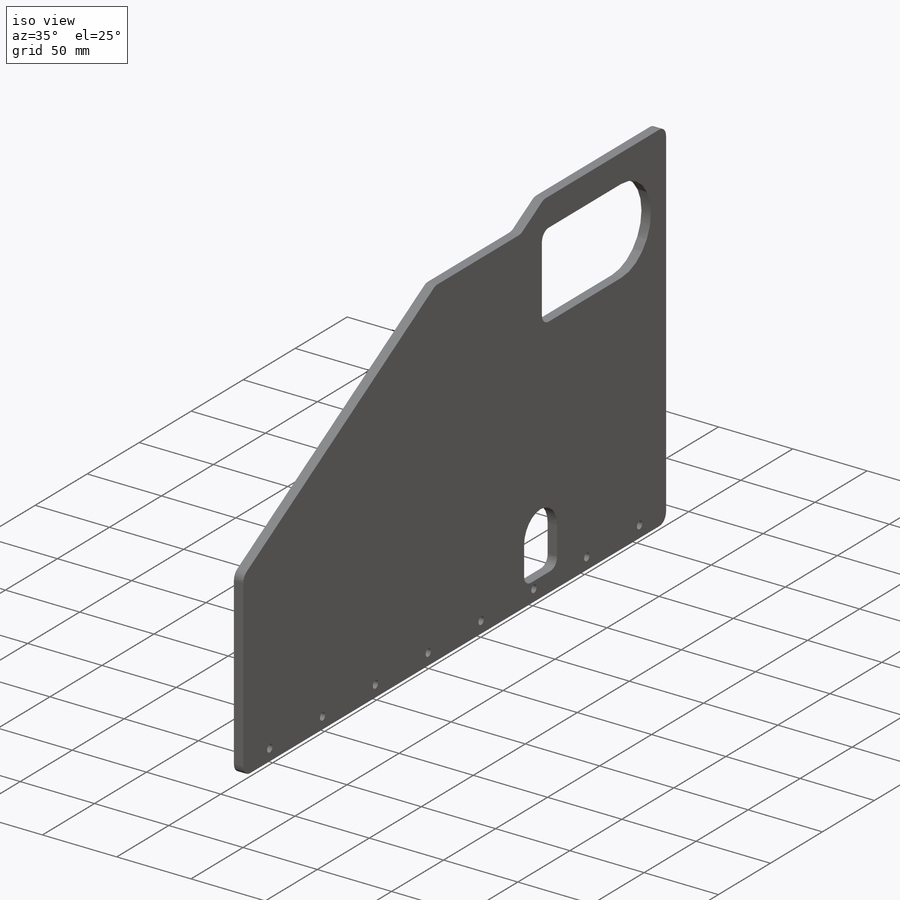
[diagram: iso view]
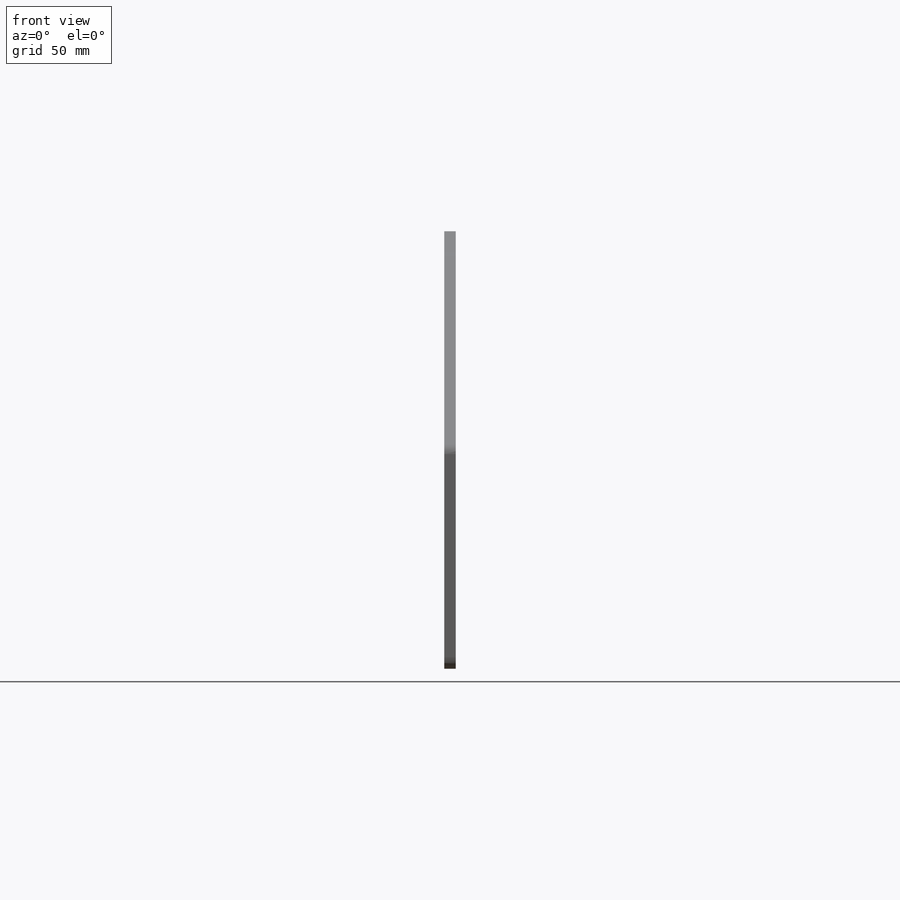
[diagram: front view]
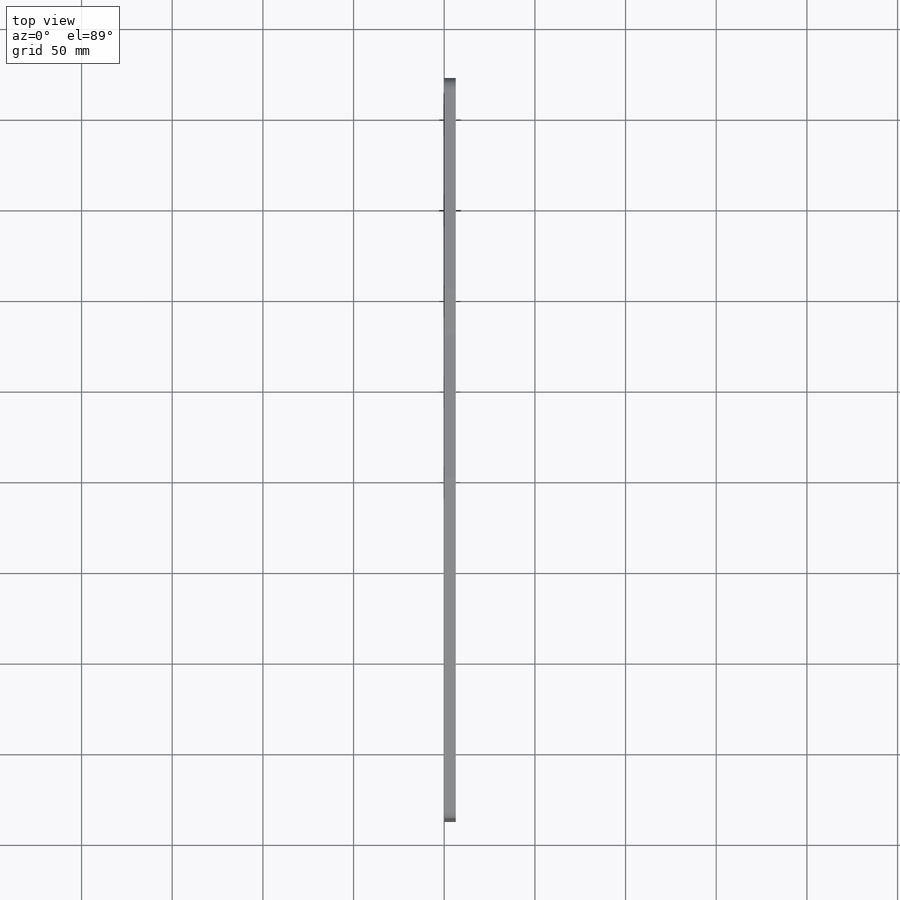
[diagram: top view]
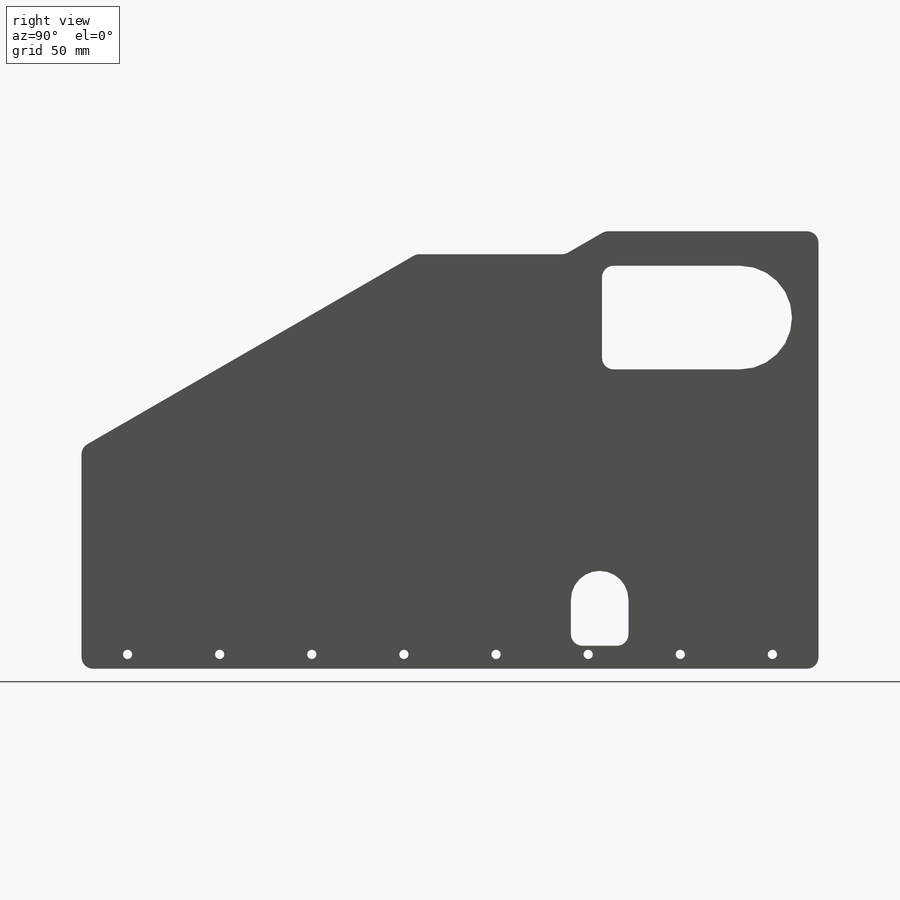
[diagram: right view]
SOLIDWORKS PART (.sldprt)
format: sldprt  version: not decoded by parser v0  size: 1,354,240 bytes
history: native  units: mm
features: sketch x28, cut_extrude x23, pattern_linear x7, extrude x3, fillet x2, material x1, delete_body x1 (+13 scaffold rows collapsed)
feature tree (78):
  scaffold x13  (default folders/planes/origin — collapsed)
  material  "Acrylic (Medium-high impact)"
  sketch  "Sketch2"  dims[c1.D1=431.8mm c1.D2=419.1mm c1.D3=127.0mm c1.D4=114.3mm c1.D5=38.1mm c1.D6=215.9mm c1.D7=~247.599108mm c2.D7=150.0deg]
  extrude  "Boss-Extrude1"  Depth=6.35mm
  sketch  "Sketch3"  dims[D4=7.9375mm D5=7.9375mm D1=38.1mm D2=63.5mm D3=63.5mm]
  cut_extrude  "Cut-Extrude1"  [1 undecoded]
  sketch  "Sketch4"  dims[c1.D1=6.35mm c1.D8=381.0mm c1.D2=38.1mm c1.D3=19.05mm c1.D4=381.0mm c1.D5=133.35mm c1.D6=268.2875mm c1.D7=101.6mm c2.D6=1.0deg c2.D5=10.0]
  sketch  "Sketch5"  dims[D1=6.35mm D2=12.7mm D3=12.7mm]
  cut_extrude  "Cut-Extrude3"  [1 undecoded]
  pattern_linear  "LPattern1"  Count1=16 Count2=1 Spacing1=25.4mm Spacing2=2.54mm
  sketch  "Sketch6"  dims[D1=12.7mm]
  cut_extrude  "Cut-Extrude4"  [1 undecoded]
  pattern_linear  "LPattern2"  Count1=11 Count2=1 Spacing1=25.4mm Spacing2=2.54mm
  sketch  "Sketch7"  dims[D1=12.7mm D2=12.7mm D3=12.7mm D4=12.7mm D5=12.7mm D6=12.7mm]
  cut_extrude  "Cut-Extrude5"  [1 undecoded]
  sketch  "Sketch8"  dims[c1.D1=3.81mm c1.D2=241.3mm c2.D1=215.9mm c2.D3=6.35mm]
  cut_extrude  "Cut-Extrude6"  [1 undecoded]
  pattern_linear  "LPattern3"  Count1=10 Count2=1 Spacing1=25.4mm Spacing2=2.54mm
  sketch  "Sketch9"  dims[D1=12.7mm]
  cut_extrude  "Cut-Extrude7"  [1 undecoded]
  pattern_linear  "LPattern4"  Count1=8 Count2=1 Spacing1=25.4mm Spacing2=2.54mm
  sketch  "Sketch10"  dims[D4=6.35mm D1=273.05mm D2=19.05mm D3=247.65mm D5=19.05mm D6=19.05mm D7=19.05mm]
  cut_extrude  "Cut-Extrude8"  [1 undecoded]
  sketch  "Sketch11"  dims[c1.D3=7.9375mm c1.D1=260.35mm c1.D2=38.1mm c1.D4=25.4mm c1.D5=25.4mm c2.D4=25.4mm c2.D5=25.4mm]
  cut_extrude  "Cut-Extrude9"  [1 undecoded]
  sketch  "Sketch12"  dims[D2=0.254mm D1=7.0]
  cut_extrude  "Cut-Extrude13"  [1 undecoded]
  sketch  "Sketch13"  dims[c1.D2=40.0mm c1.D1=131.25mm c1.D3=36.0mm c2.D1=9.8mm]
  sketch  "Sketch14"
  cut_extrude  "Cut-Extrude15"  [1 undecoded]
  sketch  "Sketch15"  dims[c1.D2=38.1mm c1.D1=48.0mm c2.D2=12.7mm]
  cut_extrude  "Cut-Extrude16"  [1 undecoded]
  sketch  "Sketch17"  dims[D1=12.7mm D2=6.35mm D3=12.7mm]
  cut_extrude  "Cut-Extrude17"  [1 undecoded]
  pattern_linear  "LPattern5"  Count1=17 Count2=1 Spacing1=25.4mm Spacing2=2.54mm
  pattern_linear  "LPattern6"  Count1=2 Count2=1 Spacing1=120.65mm Spacing2=2.54mm
  sketch  "Sketch18"  dims[D1=12.7mm D2=6.35mm]
  cut_extrude  "Cut-Extrude18"  [1 undecoded]
  pattern_linear  "LPattern7"  Count1=5 Count2=1 Spacing1=25.4mm Spacing2=2.54mm
  sketch  "Sketch19"  dims[D1=25.4mm D2=25.4mm D3=25.4mm D4=25.4mm D5=25.4mm]
  cut_extrude  "Cut-Extrude19"  [1 undecoded]
  sketch  "Sketch20"  dims[D1=12.7mm D2=12.7mm D3=12.7mm D4=12.7mm]
  cut_extrude  "Cut-Extrude20"  [1 undecoded]
  sketch  "Sketch21"  dims[c1.D4=7.9375mm c1.D5=7.9375mm c1.D9=7.9375mm c1.D11=7.9375mm c1.D1=25.4mm c1.D2=25.4mm c1.D3=12.7mm c2.D4=25.4mm c2.D5=25.4mm c2.D6=~24.904409mm c3.D6=120.0deg c3.D4=38.1mm c4.D4=150.0deg c4.D5=19.05mm c4.D6=25.4mm c4.D7=25.4mm c4.D8=76.2mm c5.D8=120.0deg c5.D9=19.05mm c5.D10=~65.910408mm c6.D10=120.0deg c6.D11=12.7mm c6.D12=19.05mm]
  cut_extrude  "Cut-Extrude21"  [1 undecoded]
  sketch  "Sketch22"
  cut_extrude  "Cut-Extrude22"  [1 undecoded]
  sketch  "Sketch26"
  extrude  "Boss-Extrude4"  [1 undecoded]
  sketch  "Sketch27"  dims[c1.D1=12.7mm c1.D2=12.7mm c1.D3=12.7mm c1.D4=12.7mm c1.D5=12.7mm c1.D6=12.7mm c1.D7=12.7mm c1.D8=19.05mm c2.D1=12.7mm c2.D2=12.7mm c2.D3=12.7mm c2.D4=12.7mm]
  extrude  "Boss-Extrude5"  Depth=6.35mm
  sketch  "Sketch28"  dims[c1.D1=~47.60884mm c2.D1=30.0deg c2.D2=~15.337924mm c3.D2=30.0deg c3.D3=25.4mm c3.D4=152.4mm c3.D5=158.75mm]
  cut_extrude  "Cut-Extrude23"  [1 undecoded]
  sketch  "Sketch29"  dims[c1.D2=~19.885669mm c1.D4=15.875mm c1.D1=12.7mm c2.D2=31.75mm c2.D3=133.35mm c2.D4=25.4mm]
  cut_extrude  "Cut-Extrude24"  [1 undecoded]
  delete_body  "Body-Delete1"
  fillet  "Fillet1"  Radius=6.35mm
  sketch  "Sketch30"  dims[c1.D2=5.08mm c1.D3=5.08mm c1.D1=7.9375mm c2.D2=25.4mm c2.D4=8.0]
  cut_extrude  "Cut-Extrude25"  [1 undecoded]
  sketch  "Sketch31"  dims[D1=19.05mm D2=57.15mm D3=43.175mm D4=76.2mm]
  cut_extrude  "Cut-Extrude26"  [1 undecoded]
  sketch  "Sketch32"
  cut_extrude  "Cut-Extrude27"  [1 undecoded]
  sketch  "Sketch33"
  cut_extrude  "Cut-Extrude28"  [1 undecoded]
  fillet  "Fillet2"  Radius=6.35mm
decode coverage: 34 of 64 modeling features carry decoded parameters
note: ~ marks probable driven/reference dimensions
note: 24 parameter values undecoded
summary: no parameter record found for 24 features
note: suppression state not decoded; provenance and decode notes live in map.json
